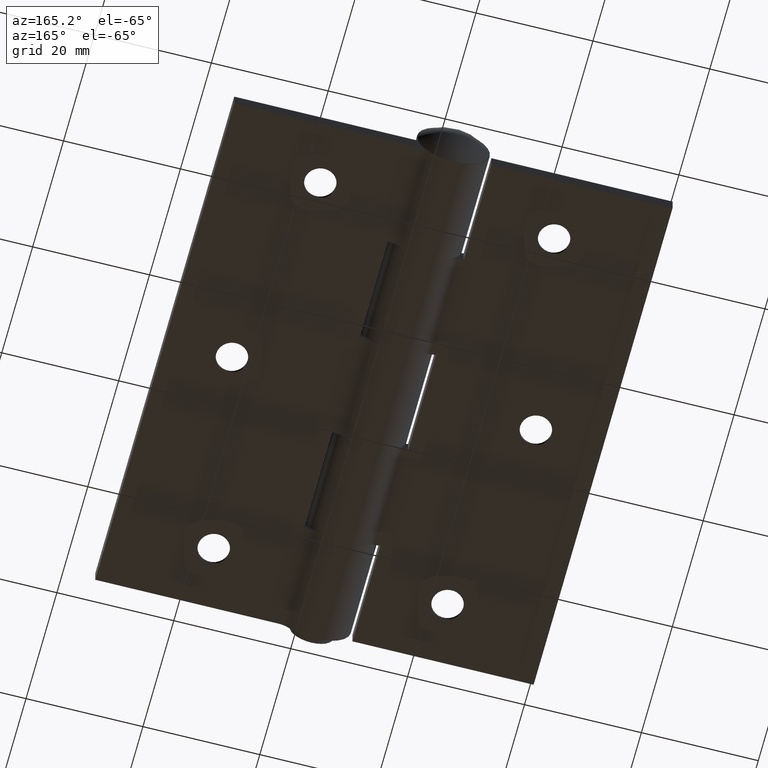
[diagram: clean part render]
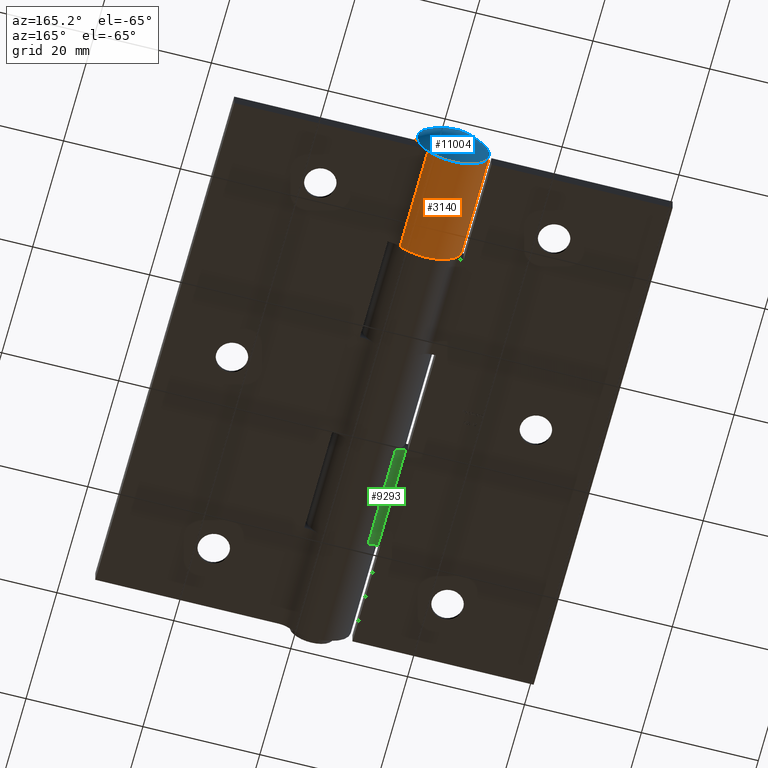
[diagram: same view with three faces highlighted in distinct colors, each labeled with its STEP entity id]
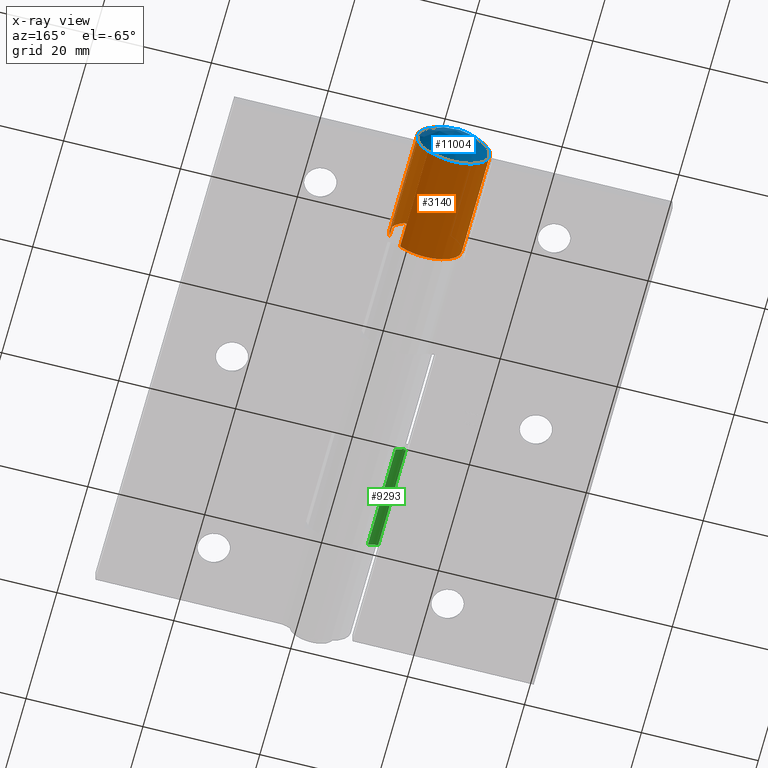
[diagram: x-ray of the same camera — body ghosted, the three highlighted faces saturated]
A machine part, auxiliary view with three faces highlighted in distinct colors.
The next image is the same camera in x-ray (body ghosted, the three faces saturated) — at least one of them is partly hidden behind the body in this view.
Their STEP definitions:

[orange] entity #3140 — the highlighted cylindrical surface (partial cylindrical patch) has radius 6.25 mm, axis along (0, 1, -0).
#238 = CARTESIAN_POINT ( 'NONE',  ( -4.374088826398531360, 45.00000000000000000, -4.464285714285714413 ) ) ;
#476 = AXIS2_PLACEMENT_3D ( 'NONE', #10046, #5269, #4179 ) ;
#830 = VERTEX_POINT ( 'NONE', #10890 ) ;
#856 = VERTEX_POINT ( 'NONE', #10971 ) ;
#1180 = CARTESIAN_POINT ( 'NONE',  ( -6.143289021363066205, 45.00000000000000000, -1.150000000000003464 ) ) ;
#1215 = FACE_OUTER_BOUND ( 'NONE', #3886, .T. ) ;
#1288 = DIRECTION ( 'NONE',  ( 0.000000000000000000, 1.000000000000000000, 0.000000000000000000 ) ) ;
#1609 = DIRECTION ( 'NONE',  ( -1.000000000000000000, 0.000000000000000000, 0.000000000000000000 ) ) ;
#1833 = CIRCLE ( 'NONE', #9936, 6.249999999999999112 ) ;
#2282 = DIRECTION ( 'NONE',  ( 0.000000000000000000, 0.000000000000000000, 1.000000000000000000 ) ) ;
#2493 = ORIENTED_EDGE ( 'NONE', *, *, #9862, .F. ) ;
#2518 = CARTESIAN_POINT ( 'NONE',  ( 0.000000000000000000, -27.00000000000001066, 0.000000000000000000 ) ) ;
#2784 = EDGE_CURVE ( 'NONE', #830, #5333, #1833, .T. ) ;
#2824 = AXIS2_PLACEMENT_3D ( 'NONE', #5130, #1288, #2282 ) ;
#3137 = VERTEX_POINT ( 'NONE', #9118 ) ;
#3140 = ADVANCED_FACE ( 'NONE', ( #1215 ), #11417, .T. ) ;
#3722 = LINE ( 'NONE', #1180, #11833 ) ;
#3886 = EDGE_LOOP ( 'NONE', ( #2493, #3918, #11391, #10157 ) ) ;
#3918 = ORIENTED_EDGE ( 'NONE', *, *, #2784, .F. ) ;
#4179 = DIRECTION ( 'NONE',  ( 0.000000000000000000, 0.000000000000000000, -1.000000000000000000 ) ) ;
#4951 = DIRECTION ( 'NONE',  ( -0.000000000000000000, -1.000000000000000000, -0.000000000000000000 ) ) ;
#5130 = CARTESIAN_POINT ( 'NONE',  ( 0.000000000000000000, -45.00000000000000000, 0.000000000000000000 ) ) ;
#5269 = DIRECTION ( 'NONE',  ( -0.000000000000000000, -1.000000000000000000, -0.000000000000000000 ) ) ;
#5333 = VERTEX_POINT ( 'NONE', #9680 ) ;
#7116 = EDGE_CURVE ( 'NONE', #830, #3137, #3722, .T. ) ;
#7352 = DIRECTION ( 'NONE',  ( -2.312964634635742957E-16, 1.000000000000000000, 0.000000000000000000 ) ) ;
#7450 = VECTOR ( 'NONE', #8866, 1000.000000000000000 ) ;
#8054 = EDGE_CURVE ( 'NONE', #3137, #856, #11083, .T. ) ;
#8866 = DIRECTION ( 'NONE',  ( -0.000000000000000000, -1.000000000000000000, -0.000000000000000000 ) ) ;
#9118 = CARTESIAN_POINT ( 'NONE',  ( -6.143289021363066205, -45.00000000000000000, -1.150000000000003464 ) ) ;
#9667 = LINE ( 'NONE', #238, #7450 ) ;
#9680 = CARTESIAN_POINT ( 'NONE',  ( -4.374088826398531360, -27.00000000000001066, -4.464285714285714413 ) ) ;
#9862 = EDGE_CURVE ( 'NONE', #5333, #856, #9667, .T. ) ;
#9936 = AXIS2_PLACEMENT_3D ( 'NONE', #2518, #7352, #1609 ) ;
#10046 = CARTESIAN_POINT ( 'NONE',  ( 0.000000000000000000, 45.00000000000000000, 0.000000000000000000 ) ) ;
#10157 = ORIENTED_EDGE ( 'NONE', *, *, #8054, .T. ) ;
#10890 = CARTESIAN_POINT ( 'NONE',  ( -6.143289021363067981, -27.00000000000001066, -1.150000000000003686 ) ) ;
#10971 = CARTESIAN_POINT ( 'NONE',  ( -4.374088826398531360, -45.00000000000000000, -4.464285714285714413 ) ) ;
#11083 = CIRCLE ( 'NONE', #2824, 6.249999999999999112 ) ;
#11391 = ORIENTED_EDGE ( 'NONE', *, *, #7116, .T. ) ;
#11417 = CYLINDRICAL_SURFACE ( 'NONE', #476, 6.249999999999999112 ) ;
#11833 = VECTOR ( 'NONE', #4951, 1000.000000000000000 ) ;

[blue] entity #11004 — the highlighted spherical surface has radius 9.696 mm.
#543 = CARTESIAN_POINT ( 'NONE',  ( 0.000000000000000000, 46.00000000000000000, 0.000000000000000000 ) ) ;
#669 = ORIENTED_EDGE ( 'NONE', *, *, #5622, .T. ) ;
#1521 = DIRECTION ( 'NONE',  ( -0.000000000000000000, 1.000000000000000000, -0.000000000000000000 ) ) ;
#1530 = AXIS2_PLACEMENT_3D ( 'NONE', #543, #1521, #8229 ) ;
#1597 = CARTESIAN_POINT ( 'NONE',  ( 0.000000000000000000, 46.00000000000000000, 6.149999999999996803 ) ) ;
#1666 = CIRCLE ( 'NONE', #1530, 6.149999999999996803 ) ;
#4720 = EDGE_LOOP ( 'NONE', ( #669 ) ) ;
#5544 = AXIS2_PLACEMENT_3D ( 'NONE', #10636, #9614, #8711 ) ;
#5622 = EDGE_CURVE ( 'NONE', #5914, #5914, #1666, .T. ) ;
#5914 = VERTEX_POINT ( 'NONE', #1597 ) ;
#8229 = DIRECTION ( 'NONE',  ( 0.000000000000000000, 0.000000000000000000, 1.000000000000000000 ) ) ;
#8711 = DIRECTION ( 'NONE',  ( 1.000000000000000000, 0.000000000000000000, 0.000000000000000000 ) ) ;
#9614 = DIRECTION ( 'NONE',  ( 0.000000000000000000, 0.000000000000000000, -1.000000000000000000 ) ) ;
#10580 = SPHERICAL_SURFACE ( 'NONE', #5544, 9.696022727272712416 ) ;
#10636 = CARTESIAN_POINT ( 'NONE',  ( -3.469446951953614189E-15, 38.50397727272728332, 0.000000000000000000 ) ) ;
#11004 = ADVANCED_FACE ( 'NONE', ( #11479 ), #10580, .T. ) ;
#11479 = FACE_OUTER_BOUND ( 'NONE', #4720, .T. ) ;

[green] entity #9293 — the highlighted cylindrical surface (edge-blend (fillet) strip) has radius 2.5 mm, axis along (-0, -1, -0).
#35 = CIRCLE ( 'NONE', #11330, 2.500000000000001332 ) ;
#681 = CARTESIAN_POINT ( 'NONE',  ( -6.123724356957946036, -9.000000000000005329, -3.750000000000000000 ) ) ;
#1820 = DIRECTION ( 'NONE',  ( 1.156482317317871478E-16, -1.000000000000000000, -0.000000000000000000 ) ) ;
#2228 = EDGE_CURVE ( 'NONE', #5275, #7189, #11282, .T. ) ;
#2558 = VERTEX_POINT ( 'NONE', #681 ) ;
#3534 = LINE ( 'NONE', #9101, #9973 ) ;
#4421 = ORIENTED_EDGE ( 'NONE', *, *, #9960, .F. ) ;
#4536 = DIRECTION ( 'NONE',  ( -0.000000000000000000, -1.000000000000000000, -0.000000000000000000 ) ) ;
#4683 = CARTESIAN_POINT ( 'NONE',  ( -6.123724356957943371, -9.000000000000001776, -6.250000000000000000 ) ) ;
#4864 = AXIS2_PLACEMENT_3D ( 'NONE', #11593, #7746, #6964 ) ;
#4896 = CARTESIAN_POINT ( 'NONE',  ( -6.123724356957943371, 45.00000000000000000, -6.250000000000000000 ) ) ;
#5170 = EDGE_CURVE ( 'NONE', #7229, #2558, #35, .T. ) ;
#5275 = VERTEX_POINT ( 'NONE', #11585 ) ;
#5493 = FACE_OUTER_BOUND ( 'NONE', #7662, .T. ) ;
#6101 = EDGE_CURVE ( 'NONE', #7229, #5275, #12296, .T. ) ;
#6314 = CARTESIAN_POINT ( 'NONE',  ( -4.374088826398531360, -9.000000000000001776, -4.464285714285714413 ) ) ;
#6861 = CYLINDRICAL_SURFACE ( 'NONE', #10123, 2.500000000000000444 ) ;
#6964 = DIRECTION ( 'NONE',  ( -1.000000000000000000, 0.000000000000000000, 0.000000000000000000 ) ) ;
#7189 = VERTEX_POINT ( 'NONE', #7227 ) ;
#7227 = CARTESIAN_POINT ( 'NONE',  ( -6.123724356957946036, -27.00000000000001776, -3.750000000000000000 ) ) ;
#7229 = VERTEX_POINT ( 'NONE', #6314 ) ;
#7655 = DIRECTION ( 'NONE',  ( -0.000000000000000000, -1.000000000000000000, -0.000000000000000000 ) ) ;
#7662 = EDGE_LOOP ( 'NONE', ( #11044, #11281, #10440, #4421 ) ) ;
#7746 = DIRECTION ( 'NONE',  ( 2.312964634635742957E-16, -1.000000000000000000, -0.000000000000000000 ) ) ;
#9101 = CARTESIAN_POINT ( 'NONE',  ( -6.123724356957943371, 45.00000000000000000, -3.750000000000000000 ) ) ;
#9293 = ADVANCED_FACE ( 'NONE', ( #5493 ), #6861, .F. ) ;
#9586 = VECTOR ( 'NONE', #4536, 1000.000000000000000 ) ;
#9593 = DIRECTION ( 'NONE',  ( -1.000000000000000000, 0.000000000000000000, 0.000000000000000000 ) ) ;
#9960 = EDGE_CURVE ( 'NONE', #2558, #7189, #3534, .T. ) ;
#9973 = VECTOR ( 'NONE', #10966, 1000.000000000000000 ) ;
#10123 = AXIS2_PLACEMENT_3D ( 'NONE', #4896, #7655, #10538 ) ;
#10440 = ORIENTED_EDGE ( 'NONE', *, *, #2228, .T. ) ;
#10538 = DIRECTION ( 'NONE',  ( 0.000000000000000000, 0.000000000000000000, -1.000000000000000000 ) ) ;
#10966 = DIRECTION ( 'NONE',  ( -0.000000000000000000, -1.000000000000000000, -0.000000000000000000 ) ) ;
#11044 = ORIENTED_EDGE ( 'NONE', *, *, #5170, .F. ) ;
#11281 = ORIENTED_EDGE ( 'NONE', *, *, #6101, .T. ) ;
#11282 = CIRCLE ( 'NONE', #4864, 2.500000000000001332 ) ;
#11330 = AXIS2_PLACEMENT_3D ( 'NONE', #4683, #1820, #9593 ) ;
#11585 = CARTESIAN_POINT ( 'NONE',  ( -4.374088826398531360, -27.00000000000001066, -4.464285714285714413 ) ) ;
#11593 = CARTESIAN_POINT ( 'NONE',  ( -6.123724356957943371, -27.00000000000001066, -6.250000000000000000 ) ) ;
#12134 = CARTESIAN_POINT ( 'NONE',  ( -4.374088826398531360, 45.00000000000000000, -4.464285714285714413 ) ) ;
#12296 = LINE ( 'NONE', #12134, #9586 ) ;